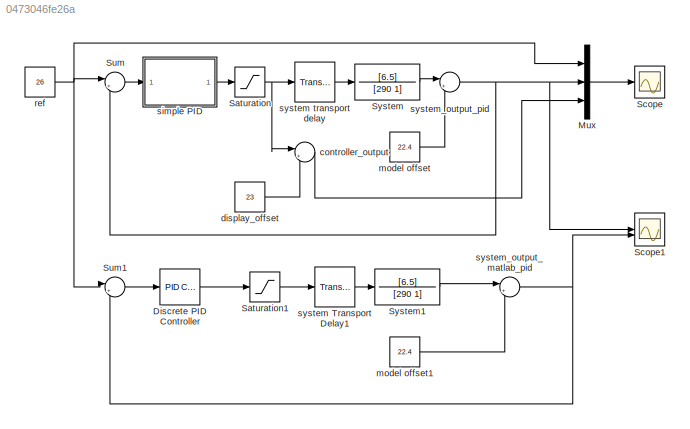
MODEL slx_0473046fe26a
KIND model
CONFIG AbsTol = auto
CONFIG EnableMultiTasking = off
CONFIG FixedStep = auto
CONFIG MaxStep = auto
CONFIG MinStep = auto
CONFIG RelTol = 1e-3
CONFIG SampleTimeConstraint = Unconstrained
CONFIG SolverName = VariableStepAuto
CONFIG StartTime = 0.0
CONFIG StopTime = 1000.0
BLOCK [Reference] Discrete PID Controller  REF=slpidlib/PID Controller
  LibrarySourceBlock = simulink/Discrete/Discrete PID Controller
  SourceBlock = slpidlib/PID Controller
  SourceType = PID 1dof
BLOCK [Mux] Mux
  DisplayOption = bar
  Inputs = 3
BLOCK [Saturate] Saturation
  LowerLimit = 0
  UpperLimit = 1
BLOCK [Saturate] Saturation1
  LowerLimit = 0
  UpperLimit = 1
BLOCK [Scope] Scope
  Floating = off
  NumInputPorts = 1
  ScopeSpecificationString = Simulink.scopes.TimeScopeBlockCfg('CurrentConfiguration', extmgr.ConfigurationSet(extmgr.Configuration('Core','General UI',true),extmgr.Configuration('Core','Source UI',true),extmgr.Configuration('Sources','WiredSimulink',true),extmgr.Configuration('Visuals','Time Domain',true,'SerializedDisplays',{struct('MinYLimReal','21.73473','MaxYLimReal','28.38747','YLabelReal','','MinYLimMag','21.73473','Ma...<+1448ch>
BLOCK [Scope] Scope1
  Floating = off
  NumInputPorts = 2
  ScopeSpecificationString = Simulink.scopes.TimeScopeBlockCfg('CurrentConfiguration', extmgr.ConfigurationSet(extmgr.Configuration('Core','General UI',true),extmgr.Configuration('Core','Source UI',true),extmgr.Configuration('Sources','WiredSimulink',true,'DataLoggingVariableName','ScopeData1'),extmgr.Configuration('Visuals','Time Domain',true,'SerializedDisplays',{struct('MinYLimReal','21.73473','MaxYLimReal','28.38747','YLa...<+1435ch>
BLOCK [Sum] Sum
  Inputs = |+-
BLOCK [Sum] Sum1
  Inputs = |+-
BLOCK [TransferFcn] System
  Denominator = [290 1]
  Numerator = [6.5]
BLOCK [TransferFcn] System1
  Denominator = [290 1]
  Numerator = [6.5]
BLOCK [Sum] controller_output
  Inputs = |++
BLOCK [Constant] display_offset
  Value = 23
BLOCK [Constant] model offset
  Value = 22.4
BLOCK [Constant] model offset1
  Value = 22.4
BLOCK [Constant] ref
  Value = 26
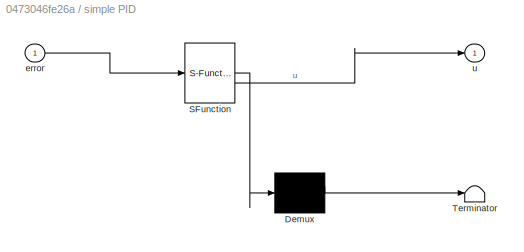
BLOCK [SubSystem] simple PID
  ErrorFcn = Stateflow.Translate.translate
  LibrarySourceBlock = simulink/User-Defined\nFunctions/MATLAB Function
  PermitHierarchicalResolution = ExplicitOnly
  SFBlockType = MATLAB Function
  TreatAsAtomicUnit = on
BLOCK [Demux] simple PID/ Demux 
  Outputs = 1
BLOCK [S-Function] simple PID/ SFunction 
  EnableBusSupport = on
  FunctionName = sf_sfun
  PortCounts = [1 2]
  SFcnIsStateOwnerBlock = off
  SFunctionDeploymentMode = off
  Tag = Stateflow S-Function 2
BLOCK [Terminator] simple PID/ Terminator 
BLOCK [Inport] simple PID/error
BLOCK [Outport] simple PID/u
BLOCK [TransportDelay] system Transport Delay1
  DelayTime = 15
BLOCK [TransportDelay] system transport delay
  DelayTime = 15
BLOCK [Sum] system_output_matlab_pid
  Inputs = |++
BLOCK [Sum] system_output_pid
  Inputs = |++
LINE Discrete PID Controller:1 -> Saturation1:1
LINE Mux:1 -> Scope:1
LINE Saturation1:1 -> system Transport Delay1:1
NET Saturation:1 -> controller_output:1, system transport delay:1
LINE Sum1:1 -> Discrete PID Controller:1
LINE Sum:1 -> simple PID:1
LINE System1:1 -> system_output_matlab_pid:1
LINE System:1 -> system_output_pid:1
LINE controller_output:1 -> Mux:3
LINE display_offset:1 -> controller_output:2
LINE model offset1:1 -> system_output_matlab_pid:2
LINE model offset:1 -> system_output_pid:2
NET ref:1 -> Mux:1, Sum1:1, Sum:1
LINE simple PID:1 -> Saturation:1
LINE system Transport Delay1:1 -> System1:1
LINE system transport delay:1 -> System:1
NET system_output_matlab_pid:1 -> Scope1:2, Sum1:2
NET system_output_pid:1 -> Mux:2, Scope1:1, Sum:2
note: NET lines group one-source signal fan-out (src -> all destinations, sorted); 1:1 wires keep LINE
CHART simple PID states=1 transitions=1
  STATE_LABEL 'eML_blk_kernel()'
  STATE_LABEL 'SCRIPT:\nfunction u = simple_pid(error)\n\n%Declare static value\npersistent previous_error;\nif isempty (previous_error)\n    previous_error = 0;\nend\n\npersistent previous_integral;\nif isempty (previous_integral)\n    previous_integral = 0;\nend\n\n%Constant values\ndt = 1;\nKp = 1.54872967509146;\nKi = 0.0184338237431332;\nKd = 0;\nN = 100;\n\n%proportional part\nP = Kp*error;\n\n%integral part\nintegral = previous_i...<+327ch>'
CHART  states=0 transitions=0
